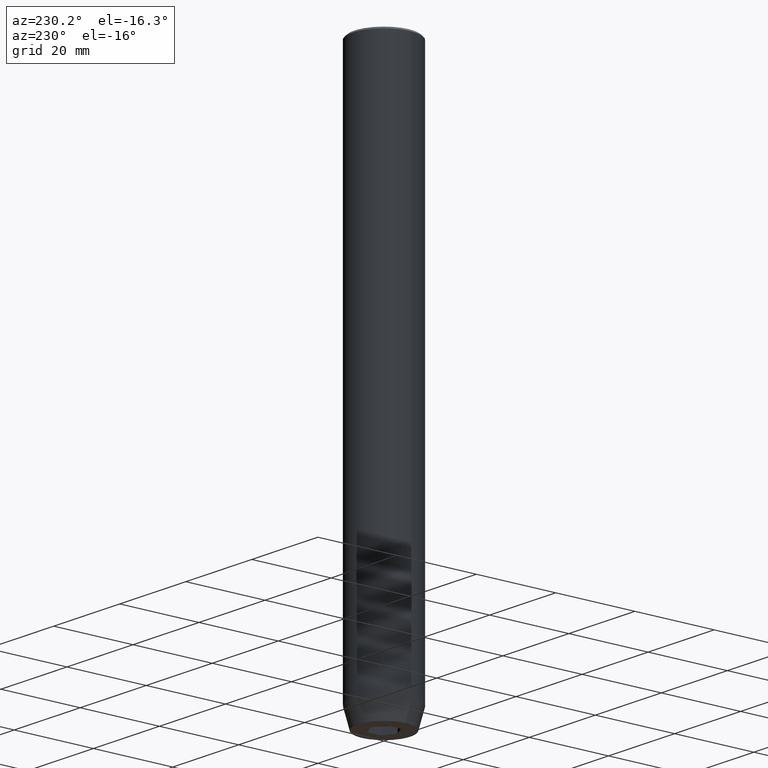
[diagram: clean part render]
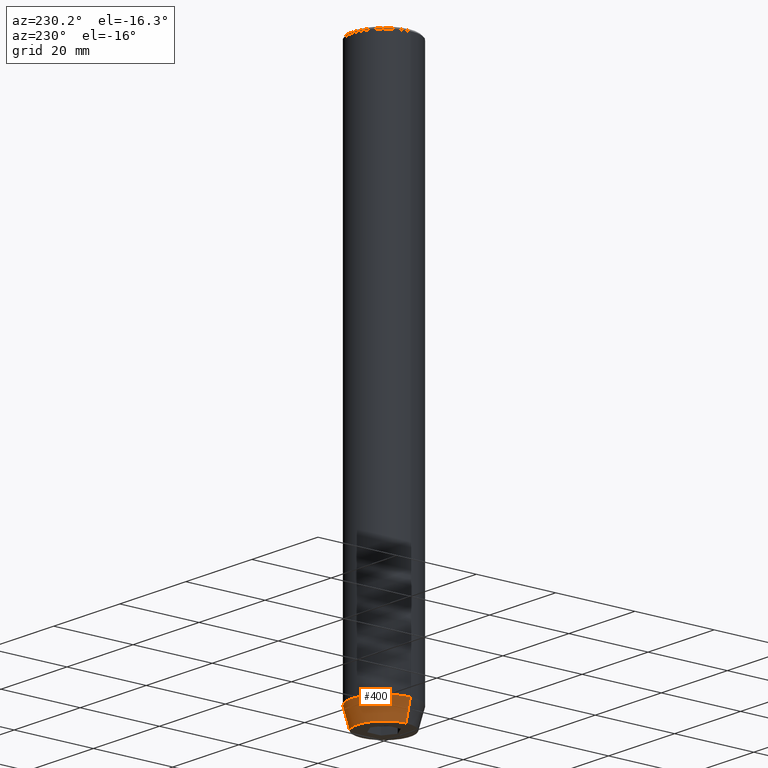
[diagram: same view with one face highlighted and labeled with its STEP entity id]
A machine part, auxiliary view. The second image highlights one B-rep face of the part: STEP entity #400.
In plain terms, the highlighted conical surface has half-angle 15 deg.
Its self-contained STEP definition (entity closure, byte-faithful):
#7 = DIRECTION ( 'NONE',  ( 1.000000000000000000, 0.000000000000000000, 0.000000000000000000 ) ) ;
#30 = DIRECTION ( 'NONE',  ( -0.2588190451025211836, 3.169619151431770488E-17, 0.9659258262890680902 ) ) ;
#32 = EDGE_CURVE ( 'NONE', #234, #575, #215, .T. ) ;
#38 = VECTOR ( 'NONE', #532, 1000.000000000000114 ) ;
#46 = DIRECTION ( 'NONE',  ( 1.000000000000000000, 0.000000000000000000, 0.000000000000000000 ) ) ;
#51 = EDGE_CURVE ( 'NONE', #122, #465, #307, .T. ) ;
#90 = EDGE_CURVE ( 'NONE', #234, #122, #496, .T. ) ;
#122 = VERTEX_POINT ( 'NONE', #182 ) ;
#182 = CARTESIAN_POINT ( 'NONE',  ( 8.000000000000000000, 0.000000000000000000, -135.0000000000000000 ) ) ;
#198 = ORIENTED_EDGE ( 'NONE', *, *, #237, .T. ) ;
#201 = LINE ( 'NONE', #249, #336 ) ;
#215 = CIRCLE ( 'NONE', #414, 6.660254037844382857 ) ;
#234 = VERTEX_POINT ( 'NONE', #301 ) ;
#237 = EDGE_CURVE ( 'NONE', #575, #465, #201, .T. ) ;
#244 = ORIENTED_EDGE ( 'NONE', *, *, #51, .F. ) ;
#249 = CARTESIAN_POINT ( 'NONE',  ( -8.000000000000000000, 9.797174393178825657E-16, -135.0000000000000000 ) ) ;
#256 = CARTESIAN_POINT ( 'NONE',  ( 0.000000000000000000, 0.000000000000000000, -140.0000000000000000 ) ) ;
#271 = CARTESIAN_POINT ( 'NONE',  ( 0.000000000000000000, 0.000000000000000000, -135.0000000000000000 ) ) ;
#301 = CARTESIAN_POINT ( 'NONE',  ( 6.660254037844382857, 0.000000000000000000, -140.0000000000000000 ) ) ;
#303 = DIRECTION ( 'NONE',  ( -0.000000000000000000, -0.000000000000000000, 1.000000000000000000 ) ) ;
#307 = CIRCLE ( 'NONE', #494, 8.000000000000000000 ) ;
#311 = DIRECTION ( 'NONE',  ( -0.000000000000000000, -0.000000000000000000, 1.000000000000000000 ) ) ;
#325 = AXIS2_PLACEMENT_3D ( 'NONE', #271, #311, #7 ) ;
#336 = VECTOR ( 'NONE', #30, 1000.000000000000114 ) ;
#355 = DIRECTION ( 'NONE',  ( 1.000000000000000000, 0.000000000000000000, 0.000000000000000000 ) ) ;
#368 = ORIENTED_EDGE ( 'NONE', *, *, #90, .F. ) ;
#400 = ADVANCED_FACE ( 'NONE', ( #491 ), #475, .T. ) ;
#414 = AXIS2_PLACEMENT_3D ( 'NONE', #256, #492, #46 ) ;
#420 = EDGE_LOOP ( 'NONE', ( #527, #198, #244, #368 ) ) ;
#445 = CARTESIAN_POINT ( 'NONE',  ( 0.000000000000000000, 0.000000000000000000, -135.0000000000000000 ) ) ;
#456 = CARTESIAN_POINT ( 'NONE',  ( -6.660254037844382857, 8.976816591066591237E-16, -140.0000000000000000 ) ) ;
#465 = VERTEX_POINT ( 'NONE', #468 ) ;
#468 = CARTESIAN_POINT ( 'NONE',  ( -8.000000000000000000, 9.797174393178825657E-16, -135.0000000000000000 ) ) ;
#475 = CONICAL_SURFACE ( 'NONE', #325, 8.000000000000000000, 0.2617993877991499074 ) ;
#491 = FACE_OUTER_BOUND ( 'NONE', #420, .T. ) ;
#492 = DIRECTION ( 'NONE',  ( -0.000000000000000000, -0.000000000000000000, 1.000000000000000000 ) ) ;
#494 = AXIS2_PLACEMENT_3D ( 'NONE', #445, #303, #355 ) ;
#496 = LINE ( 'NONE', #577, #38 ) ;
#527 = ORIENTED_EDGE ( 'NONE', *, *, #32, .T. ) ;
#532 = DIRECTION ( 'NONE',  ( 0.2588190451025211836, 0.000000000000000000, 0.9659258262890680902 ) ) ;
#575 = VERTEX_POINT ( 'NONE', #456 ) ;
#577 = CARTESIAN_POINT ( 'NONE',  ( 8.000000000000000000, 0.000000000000000000, -135.0000000000000000 ) ) ;